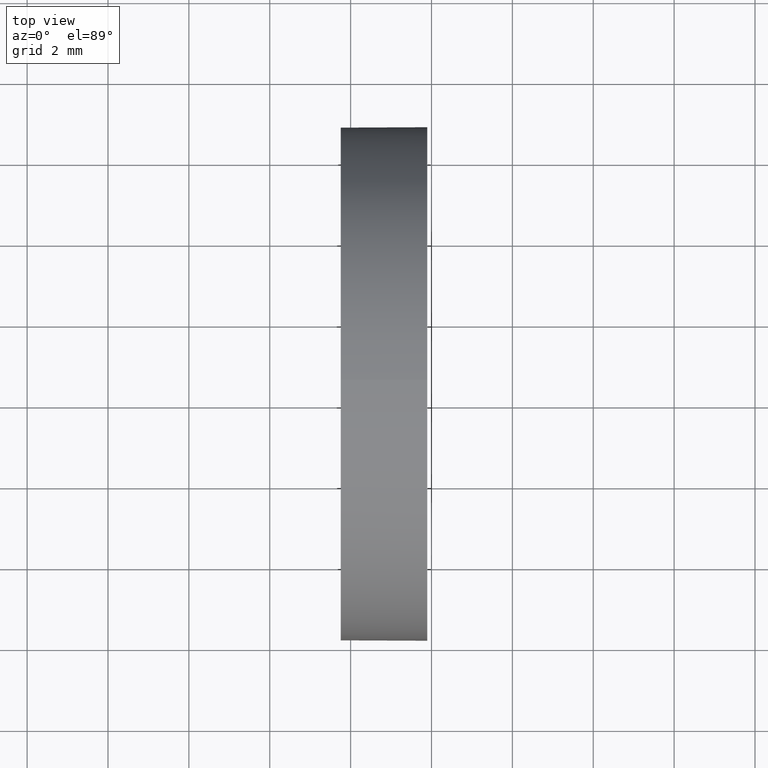
[diagram: clean part render]
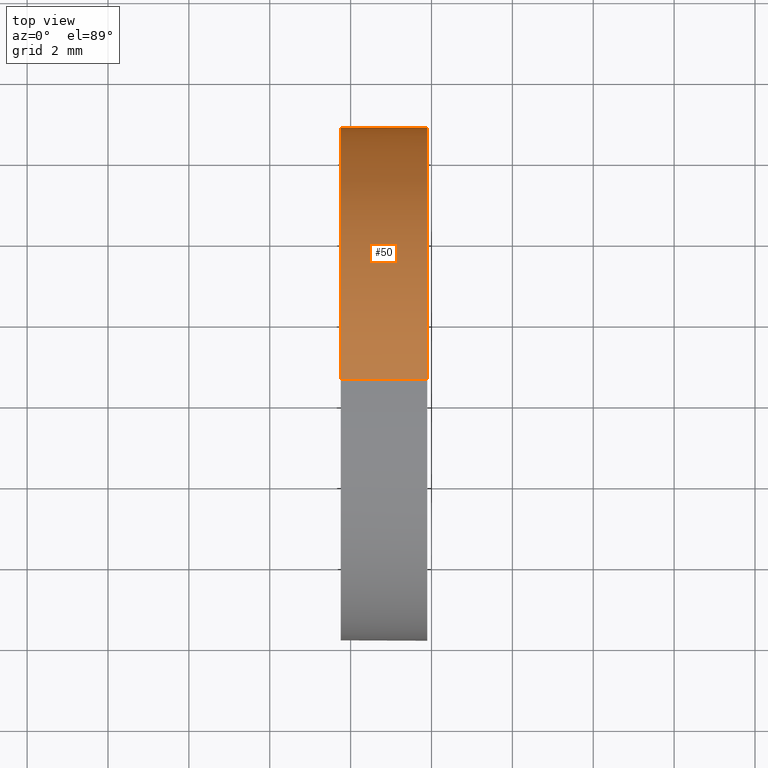
[diagram: same view with one face highlighted and labeled with its STEP entity id]
A machine part, top view. The second image highlights one B-rep face of the part: STEP entity #50.
In plain terms, the highlighted cylindrical surface (partial cylindrical patch) has radius 6.35 mm, axis along (-1, -0, -0).
Its self-contained STEP definition (entity closure, byte-faithful):
#4 = EDGE_LOOP ( 'NONE', ( #35, #136, #139, #167, #120 ) ) ;
#6 = AXIS2_PLACEMENT_3D ( 'NONE', #84, #145, #81 ) ;
#11 = DIRECTION ( 'NONE',  ( 0.0000000000000000000, 0.0000000000000000000, 1.000000000000000000 ) ) ;
#12 = DIRECTION ( 'NONE',  ( -1.000000000000000000, -0.0000000000000000000, -0.0000000000000000000 ) ) ;
#20 = CARTESIAN_POINT ( 'NONE',  ( 47.75370850148247100, 28.47759563463748100, 6.350000000000001400 ) ) ;
#21 = VERTEX_POINT ( 'NONE', #157 ) ;
#23 = DIRECTION ( 'NONE',  ( -1.000000000000000000, -0.0000000000000000000, -0.0000000000000000000 ) ) ;
#29 = CIRCLE ( 'NONE', #78, 6.350000000000008500 ) ;
#35 = ORIENTED_EDGE ( 'NONE', *, *, #176, .T. ) ;
#41 = CARTESIAN_POINT ( 'NONE',  ( 47.75370850148247100, 28.47759563463748100, -6.350000000000001400 ) ) ;
#44 = CARTESIAN_POINT ( 'NONE',  ( 47.75370850148247100, 28.47759563463748100, 0.0000000000000000000 ) ) ;
#47 = LINE ( 'NONE', #169, #181 ) ;
#50 = ADVANCED_FACE ( 'NONE', ( #117 ), #116, .T. ) ;
#51 = EDGE_CURVE ( 'NONE', #107, #161, #47, .T. ) ;
#55 = EDGE_CURVE ( 'NONE', #111, #161, #95, .T. ) ;
#62 = DIRECTION ( 'NONE',  ( -1.000000000000000000, -0.0000000000000000000, -0.0000000000000000000 ) ) ;
#64 = DIRECTION ( 'NONE',  ( -1.000000000000000000, -0.0000000000000000000, -0.0000000000000000000 ) ) ;
#78 = AXIS2_PLACEMENT_3D ( 'NONE', #156, #23, #79 ) ;
#79 = DIRECTION ( 'NONE',  ( 0.0000000000000000000, 0.0000000000000000000, 1.000000000000000000 ) ) ;
#81 = DIRECTION ( 'NONE',  ( 0.0000000000000000000, 0.0000000000000000000, 1.000000000000000000 ) ) ;
#84 = CARTESIAN_POINT ( 'NONE',  ( 44.78209190302423800, 28.47759563463748100, 0.0000000000000000000 ) ) ;
#85 = VERTEX_POINT ( 'NONE', #152 ) ;
#95 = CIRCLE ( 'NONE', #142, 6.350000000000001400 ) ;
#96 = CARTESIAN_POINT ( 'NONE',  ( 49.89555945310129900, 28.47759563463748100, 0.0000000000000000000 ) ) ;
#100 = DIRECTION ( 'NONE',  ( -1.000000000000000000, -0.0000000000000000000, -0.0000000000000000000 ) ) ;
#107 = VERTEX_POINT ( 'NONE', #141 ) ;
#111 = VERTEX_POINT ( 'NONE', #20 ) ;
#116 = CYLINDRICAL_SURFACE ( 'NONE', #6, 6.350000000000005000 ) ;
#117 = FACE_OUTER_BOUND ( 'NONE', #4, .T. ) ;
#119 = VECTOR ( 'NONE', #62, 1000.000000000000000 ) ;
#120 = ORIENTED_EDGE ( 'NONE', *, *, #164, .T. ) ;
#136 = ORIENTED_EDGE ( 'NONE', *, *, #51, .T. ) ;
#139 = ORIENTED_EDGE ( 'NONE', *, *, #55, .F. ) ;
#141 = CARTESIAN_POINT ( 'NONE',  ( 49.89555945310129900, 28.47759563463748100, -6.350000000000007600 ) ) ;
#142 = AXIS2_PLACEMENT_3D ( 'NONE', #44, #100, #146 ) ;
#145 = DIRECTION ( 'NONE',  ( -1.000000000000000000, -0.0000000000000000000, -0.0000000000000000000 ) ) ;
#146 = DIRECTION ( 'NONE',  ( 0.0000000000000000000, 0.0000000000000000000, 1.000000000000000000 ) ) ;
#147 = CARTESIAN_POINT ( 'NONE',  ( 44.78209190302423800, 28.47759563463748100, 6.350000000000005000 ) ) ;
#152 = CARTESIAN_POINT ( 'NONE',  ( 49.89555945310129900, 28.47759563463748100, 6.350000000000007600 ) ) ;
#156 = CARTESIAN_POINT ( 'NONE',  ( 49.89555945310129900, 28.47759563463748100, 0.0000000000000000000 ) ) ;
#157 = CARTESIAN_POINT ( 'NONE',  ( 49.89555945310129900, 34.82759563463749000, 7.776507174585682300E-016 ) ) ;
#159 = LINE ( 'NONE', #147, #119 ) ;
#161 = VERTEX_POINT ( 'NONE', #41 ) ;
#163 = CIRCLE ( 'NONE', #171, 6.350000000000008500 ) ;
#164 = EDGE_CURVE ( 'NONE', #85, #21, #29, .T. ) ;
#167 = ORIENTED_EDGE ( 'NONE', *, *, #178, .F. ) ;
#169 = CARTESIAN_POINT ( 'NONE',  ( 44.78209190302423800, 28.47759563463748100, -6.350000000000005000 ) ) ;
#171 = AXIS2_PLACEMENT_3D ( 'NONE', #96, #64, #11 ) ;
#176 = EDGE_CURVE ( 'NONE', #21, #107, #163, .T. ) ;
#178 = EDGE_CURVE ( 'NONE', #85, #111, #159, .T. ) ;
#181 = VECTOR ( 'NONE', #12, 1000.000000000000000 ) ;